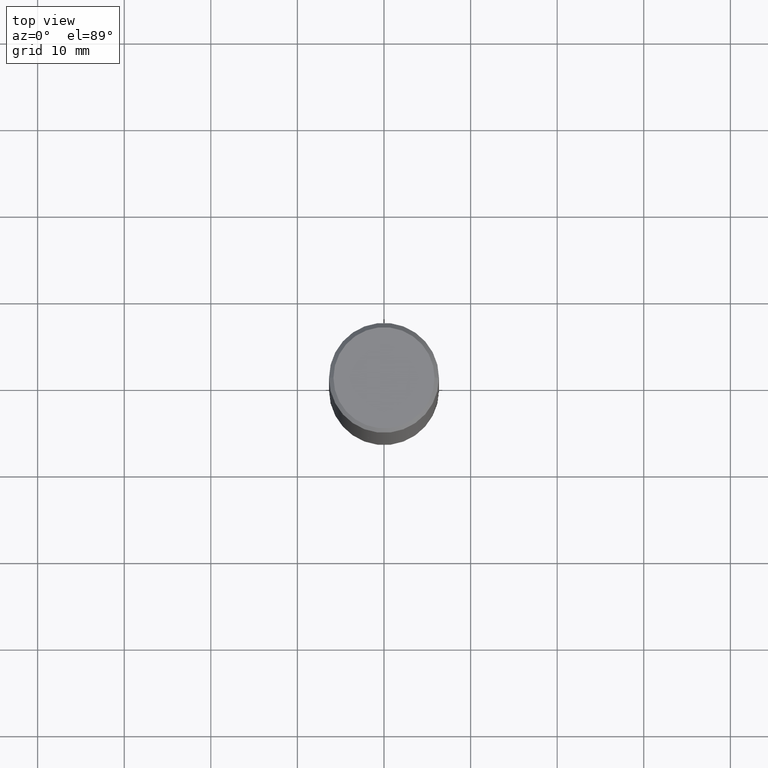
[diagram: clean part render]
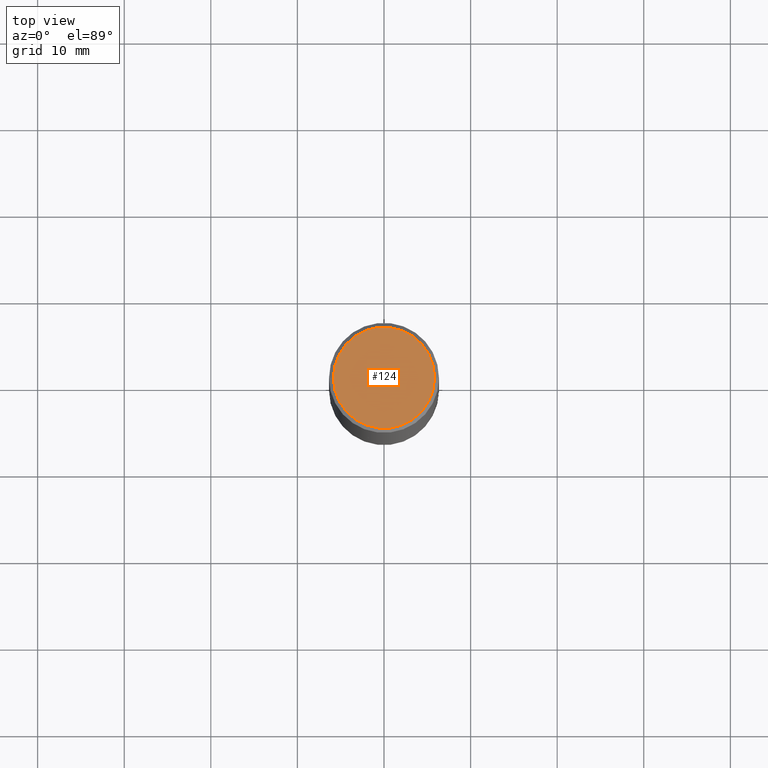
[diagram: same view with one face highlighted and labeled with its STEP entity id]
A machine part, top view. The second image highlights one B-rep face of the part: STEP entity #124.
In plain terms, the highlighted planar face has unit normal (0, -0, -1).
Its self-contained STEP definition (entity closure, byte-faithful):
#53 = FACE_OUTER_BOUND ( 'NONE', #232, .T. ) ;
#60 = VERTEX_POINT ( 'NONE', #195 ) ;
#74 = EDGE_CURVE ( 'NONE', #246, #60, #230, .T. ) ;
#82 = DIRECTION ( 'NONE',  ( -2.445468806185136597E-29, 3.491481338843145583E-15, 1.000000000000000000 ) ) ;
#88 = DIRECTION ( 'NONE',  ( 1.000000000000000000, -6.982962677686267499E-15, 4.876225828469310563E-29 ) ) ;
#121 = EDGE_CURVE ( 'NONE', #60, #246, #338, .T. ) ;
#124 = ADVANCED_FACE ( 'NONE', ( #53 ), #208, .F. ) ;
#131 = DIRECTION ( 'NONE',  ( 1.000000000000000000, -6.982962677686267499E-15, 4.876225828469310563E-29 ) ) ;
#144 = AXIS2_PLACEMENT_3D ( 'NONE', #247, #312, #373 ) ;
#187 = CARTESIAN_POINT ( 'NONE',  ( 2.087702828670439639E-46, -2.980686340760894400E-32, -8.537024980200822558E-18 ) ) ;
#195 = CARTESIAN_POINT ( 'NONE',  ( -0.2299999999999999267, 1.640996229256272125E-15, -8.537024980212177841E-18 ) ) ;
#208 = PLANE ( 'NONE',  #144 ) ;
#209 = ORIENTED_EDGE ( 'NONE', *, *, #74, .T. ) ;
#230 = CIRCLE ( 'NONE', #305, 0.2299999999999999267 ) ;
#232 = EDGE_LOOP ( 'NONE', ( #313, #209 ) ) ;
#246 = VERTEX_POINT ( 'NONE', #299 ) ;
#247 = CARTESIAN_POINT ( 'NONE',  ( 1.606081415867840870E-15, 0.2299999999999999267, -8.073092204240237214E-16 ) ) ;
#299 = CARTESIAN_POINT ( 'NONE',  ( 0.2299999999999999267, -1.681434332853598617E-15, -8.537024980189327067E-18 ) ) ;
#305 = AXIS2_PLACEMENT_3D ( 'NONE', #360, #331, #131 ) ;
#312 = DIRECTION ( 'NONE',  ( 2.438088387897960049E-29, -3.491481338843145188E-15, -1.000000000000000000 ) ) ;
#313 = ORIENTED_EDGE ( 'NONE', *, *, #121, .T. ) ;
#331 = DIRECTION ( 'NONE',  ( -2.445468806185136597E-29, 3.491481338843145583E-15, 1.000000000000000000 ) ) ;
#338 = CIRCLE ( 'NONE', #372, 0.2299999999999999267 ) ;
#360 = CARTESIAN_POINT ( 'NONE',  ( 2.087702828670439639E-46, -2.980686340760894400E-32, -8.537024980200822558E-18 ) ) ;
#372 = AXIS2_PLACEMENT_3D ( 'NONE', #187, #82, #88 ) ;
#373 = DIRECTION ( 'NONE',  ( -1.000000000000000000, 6.982962677686265922E-15, -4.876176775795935793E-29 ) ) ;